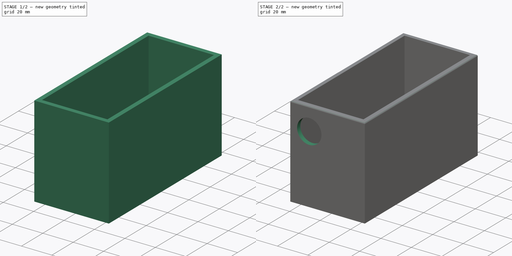
[diagram: build sequence overview — one tinted view per stage of 2, left to right]
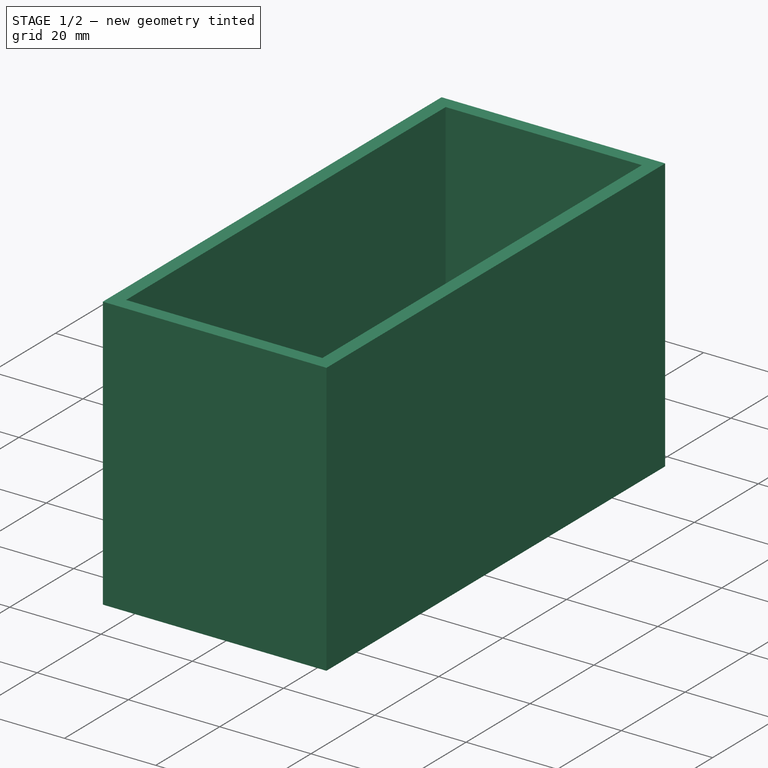
[diagram: stage 1 of 2 — iso view after this stage's code; geometry added in this stage tinted green]
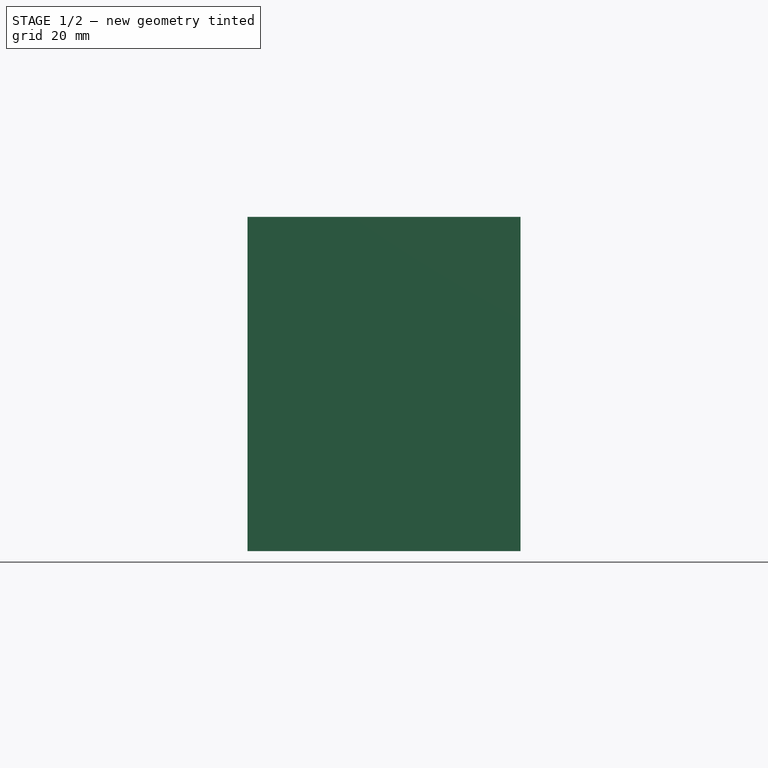
[diagram: stage 1 of 2 — front view after this stage's code; geometry added in this stage tinted green]
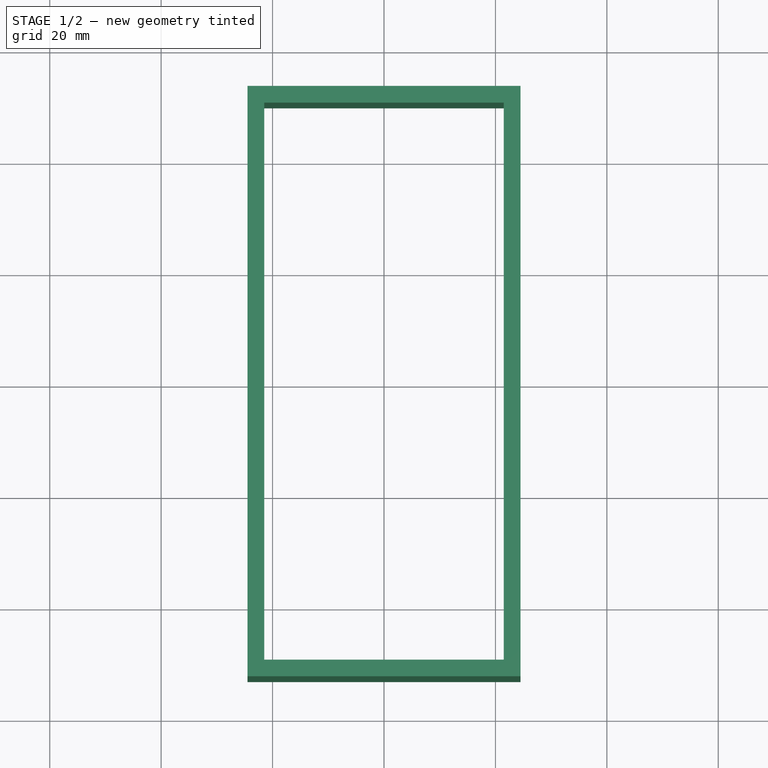
[diagram: stage 1 of 2 — top view after this stage's code; geometry added in this stage tinted green]
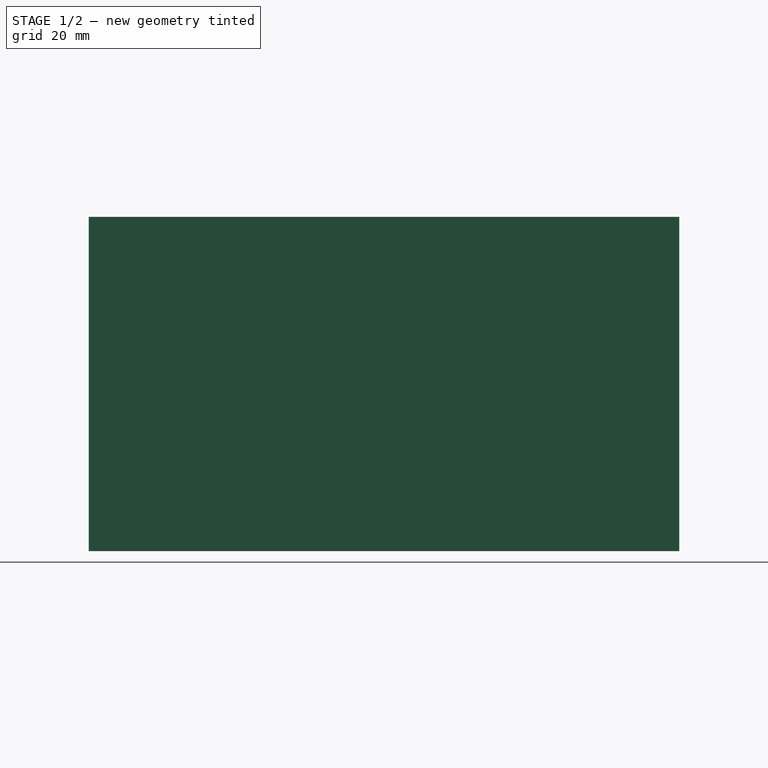
[diagram: stage 1 of 2 — right view after this stage's code; geometry added in this stage tinted green]
FCSTD DOCUMENT  (FreeCAD 0.16R6703 (Git))
Label: pocket
License: CreativeCommons Attribution
LicenseURL: http://creativecommons.org/licenses/by/4.0/
objects: Sketcher::SketchObject×3, PartDesign::Pocket×2, PartDesign::Pad×1, PartDesign::Fillet×1
note: 10 computed .brp shape members not serialized (recipe doc carries the construction recipe); baked Part::Feature solids carry a one-line shape summary decoded from their .brp

FEATURE [Sketcher::SketchObject] Sketch
  sketch-geometry (4):
    g0: LineSegment StartX=-24.5 StartY=53 StartZ=0 EndX=24.5 EndY=53 EndZ=0
    g1: LineSegment StartX=24.5 StartY=53 StartZ=0 EndX=24.5 EndY=-53 EndZ=0
    g2: LineSegment StartX=24.5 StartY=-53 StartZ=0 EndX=-24.5 EndY=-53 EndZ=0
    g3: LineSegment StartX=-24.5 StartY=-53 StartZ=0 EndX=-24.5 EndY=53 EndZ=0
  constraints (12):
    c: Coincident(g0,g1)
    c: Coincident(g1,g2)
    c: Coincident(g2,g3)
    c: Coincident(g3,g0)
    c: Horizontal(g0)
    c: Horizontal(g2)
    c: Vertical(g1)
    c: Vertical(g3)
    c: DistanceY(g1,g0) = 106
    c: DistanceY(g-1,g0) = 53
    c: DistanceX(g0,g0) = 49
    c: DistanceX(g0,g-1) = 24.5
FEATURE [PartDesign::Pad] Pad
  Length = 60
  Length2 = 100
  Sketch = -> Sketch
  Type = 0
FEATURE [Sketcher::SketchObject] Sketch001
  ExternalGeometry = -> [Pad]
  Placement = pos=(0,0,60) rot=(0,0,1;0rad)
  Support = -> Pad [Face6]
  sketch-geometry (4):
    g0: LineSegment StartX=-21.5 StartY=50 StartZ=0 EndX=21.5 EndY=50 EndZ=0
    g1: LineSegment StartX=21.5 StartY=50 StartZ=0 EndX=21.5 EndY=-50 EndZ=0
    g2: LineSegment StartX=21.5 StartY=-50 StartZ=0 EndX=-21.5 EndY=-50 EndZ=0
    g3: LineSegment StartX=-21.5 StartY=-50 StartZ=0 EndX=-21.5 EndY=50 EndZ=0
  constraints (12):
    c: Coincident(g0,g1)
    c: Coincident(g1,g2)
    c: Coincident(g2,g3)
    c: Coincident(g3,g0)
    c: Horizontal(g0)
    c: Horizontal(g2)
    c: Vertical(g1)
    c: Vertical(g3)
    c: DistanceY(g0,g-4) = 3
    c: DistanceX(g0,g-4) = 3
    c: DistanceX(g-5,g0) = 3
    c: DistanceY(g-6,g2) = 3
FEATURE [PartDesign::Pocket] Pocket
  Length = 5
  Sketch = -> Sketch001
  Type = 1
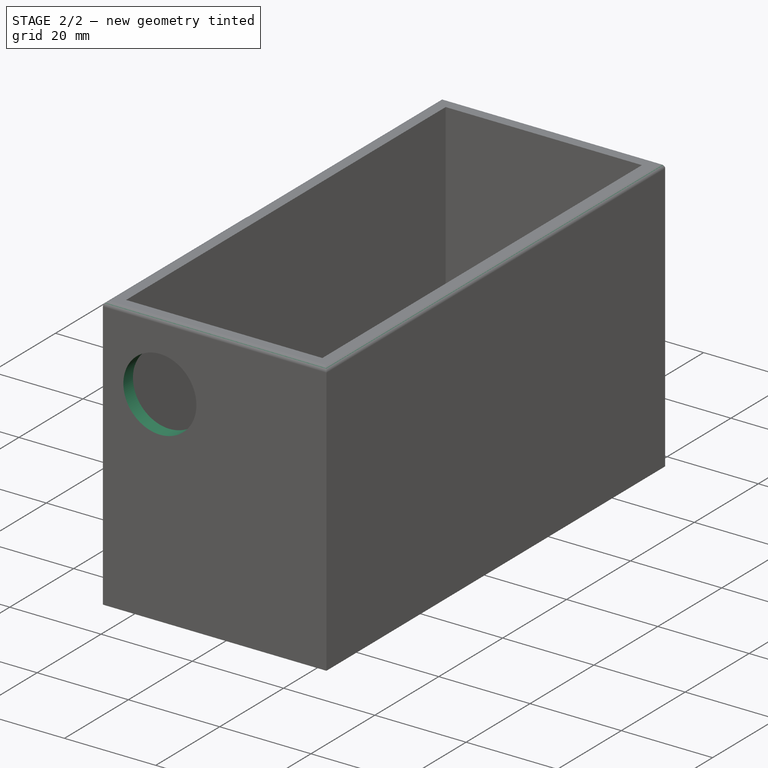
[diagram: stage 2 of 2 — iso view after this stage's code; geometry added in this stage tinted green]
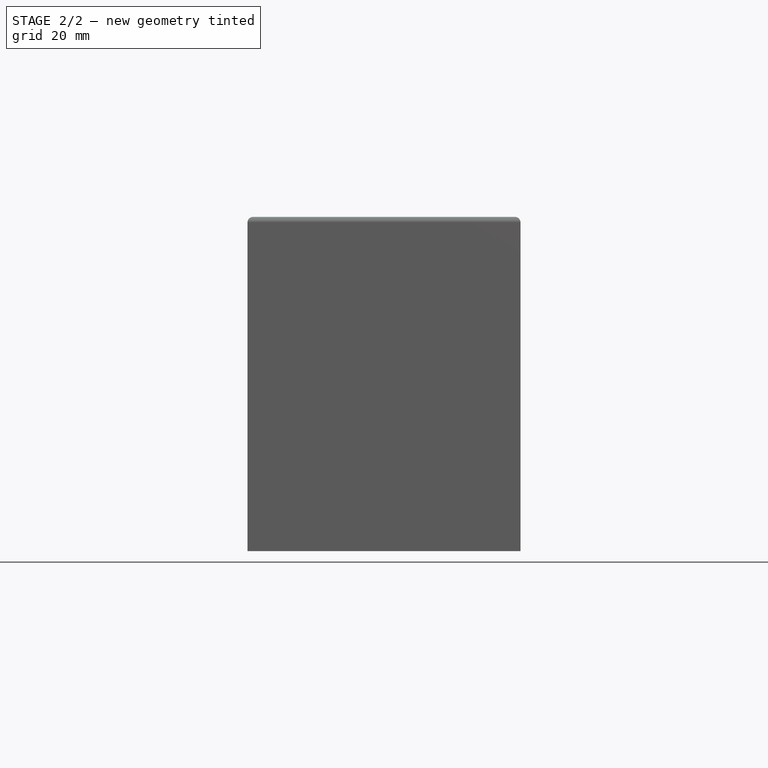
[diagram: stage 2 of 2 — front view after this stage's code; geometry added in this stage tinted green]
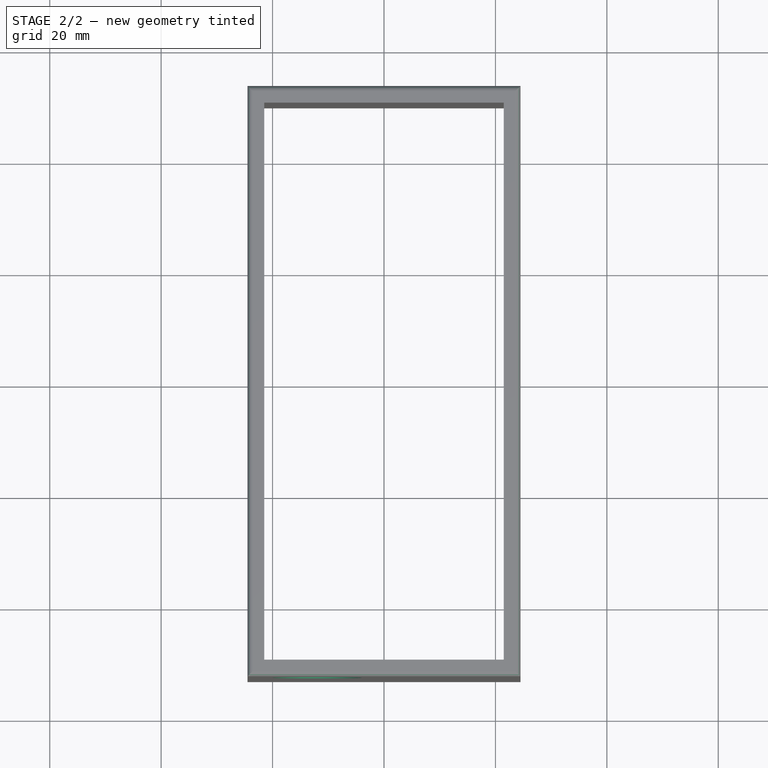
[diagram: stage 2 of 2 — top view after this stage's code; geometry added in this stage tinted green]
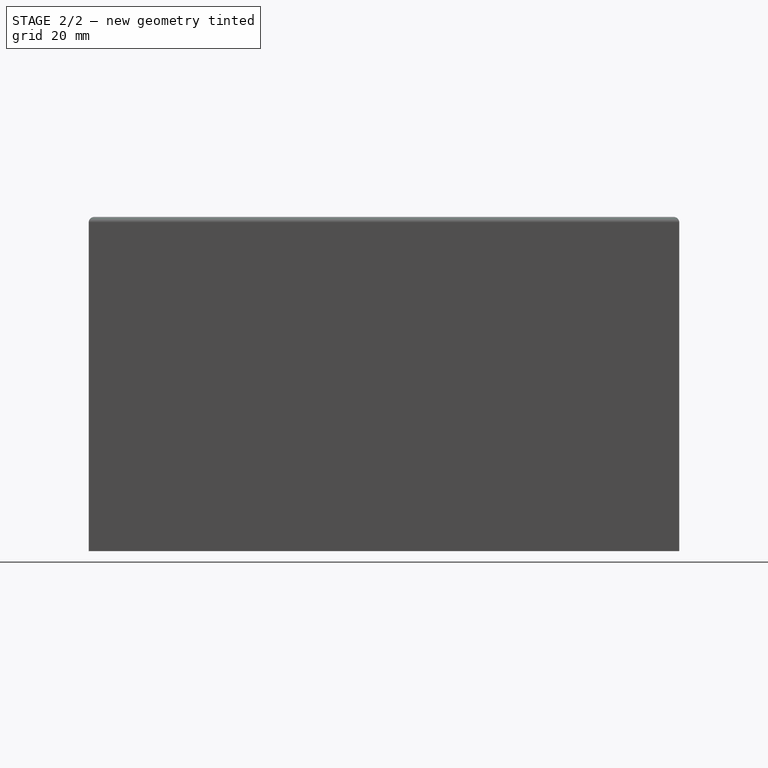
[diagram: stage 2 of 2 — right view after this stage's code; geometry added in this stage tinted green]
FEATURE [PartDesign::Fillet] Fillet
  Base = -> Pocket [Edge4,Edge10,Edge7,Edge16]
  Radius = 1
FEATURE [Sketcher::SketchObject] Sketch002
  Placement = pos=(0,-53,0) rot=(1,0,0;1.5708rad)
  Support = -> Fillet [Face6]
  sketch-geometry (1):
    g0: Circle CenterX=-12 CenterY=45 CenterZ=0 NormalX=0 NormalY=0 NormalZ=1 Radius=8
  constraints (3):
    c: Radius(g0) = 8
    c: DistanceX(g0,g-1) = 12
    c: DistanceY(g-1,g0) = 45
FEATURE [PartDesign::Pocket] Pocket001
  Length = 5
  Sketch = -> Sketch002
  Type = 2
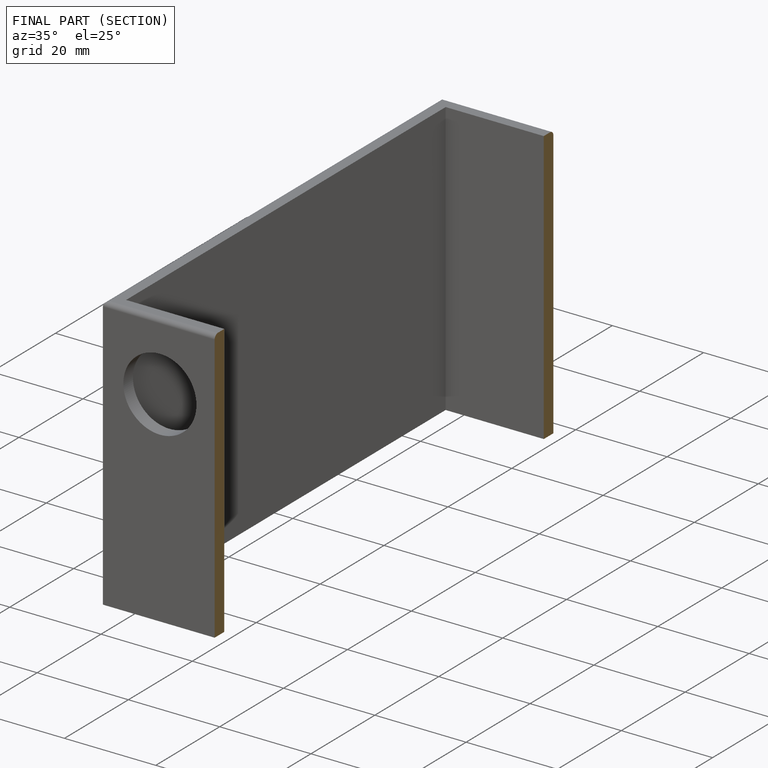
[diagram: finished part — half-section view (interior)]
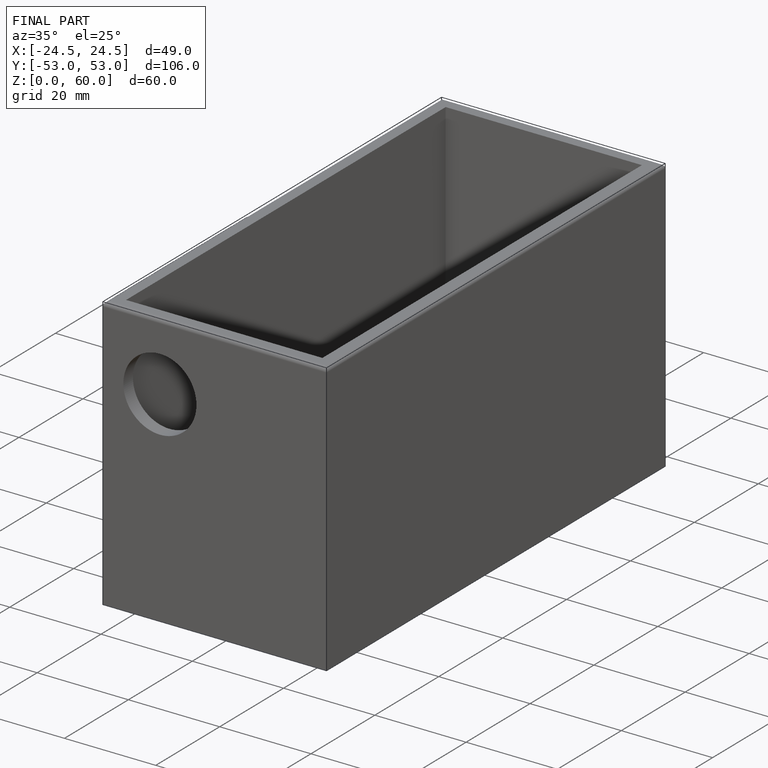
[diagram: finished part — iso view with bounding-box wireframe]
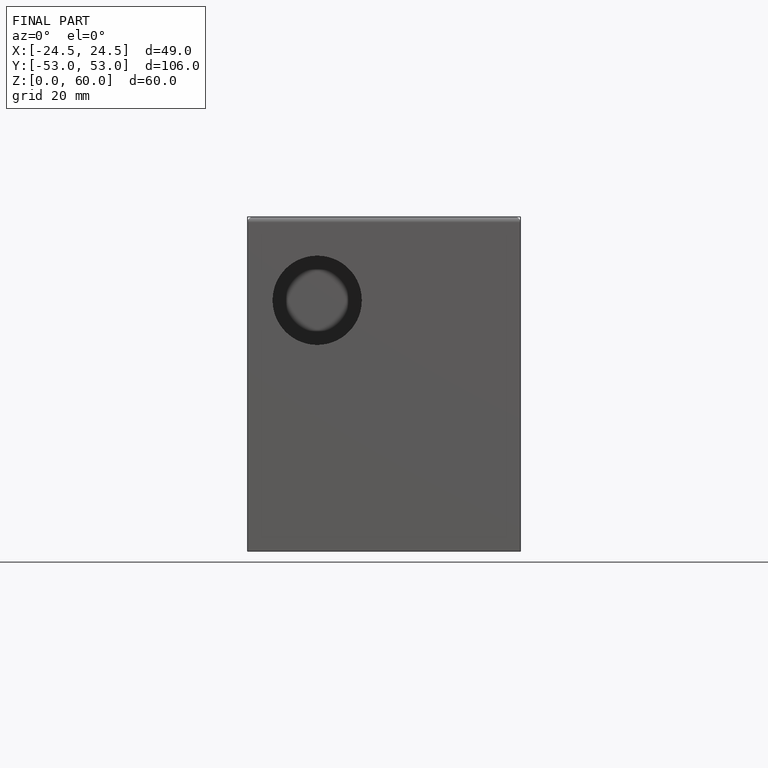
[diagram: finished part — front view with bounding-box wireframe]
